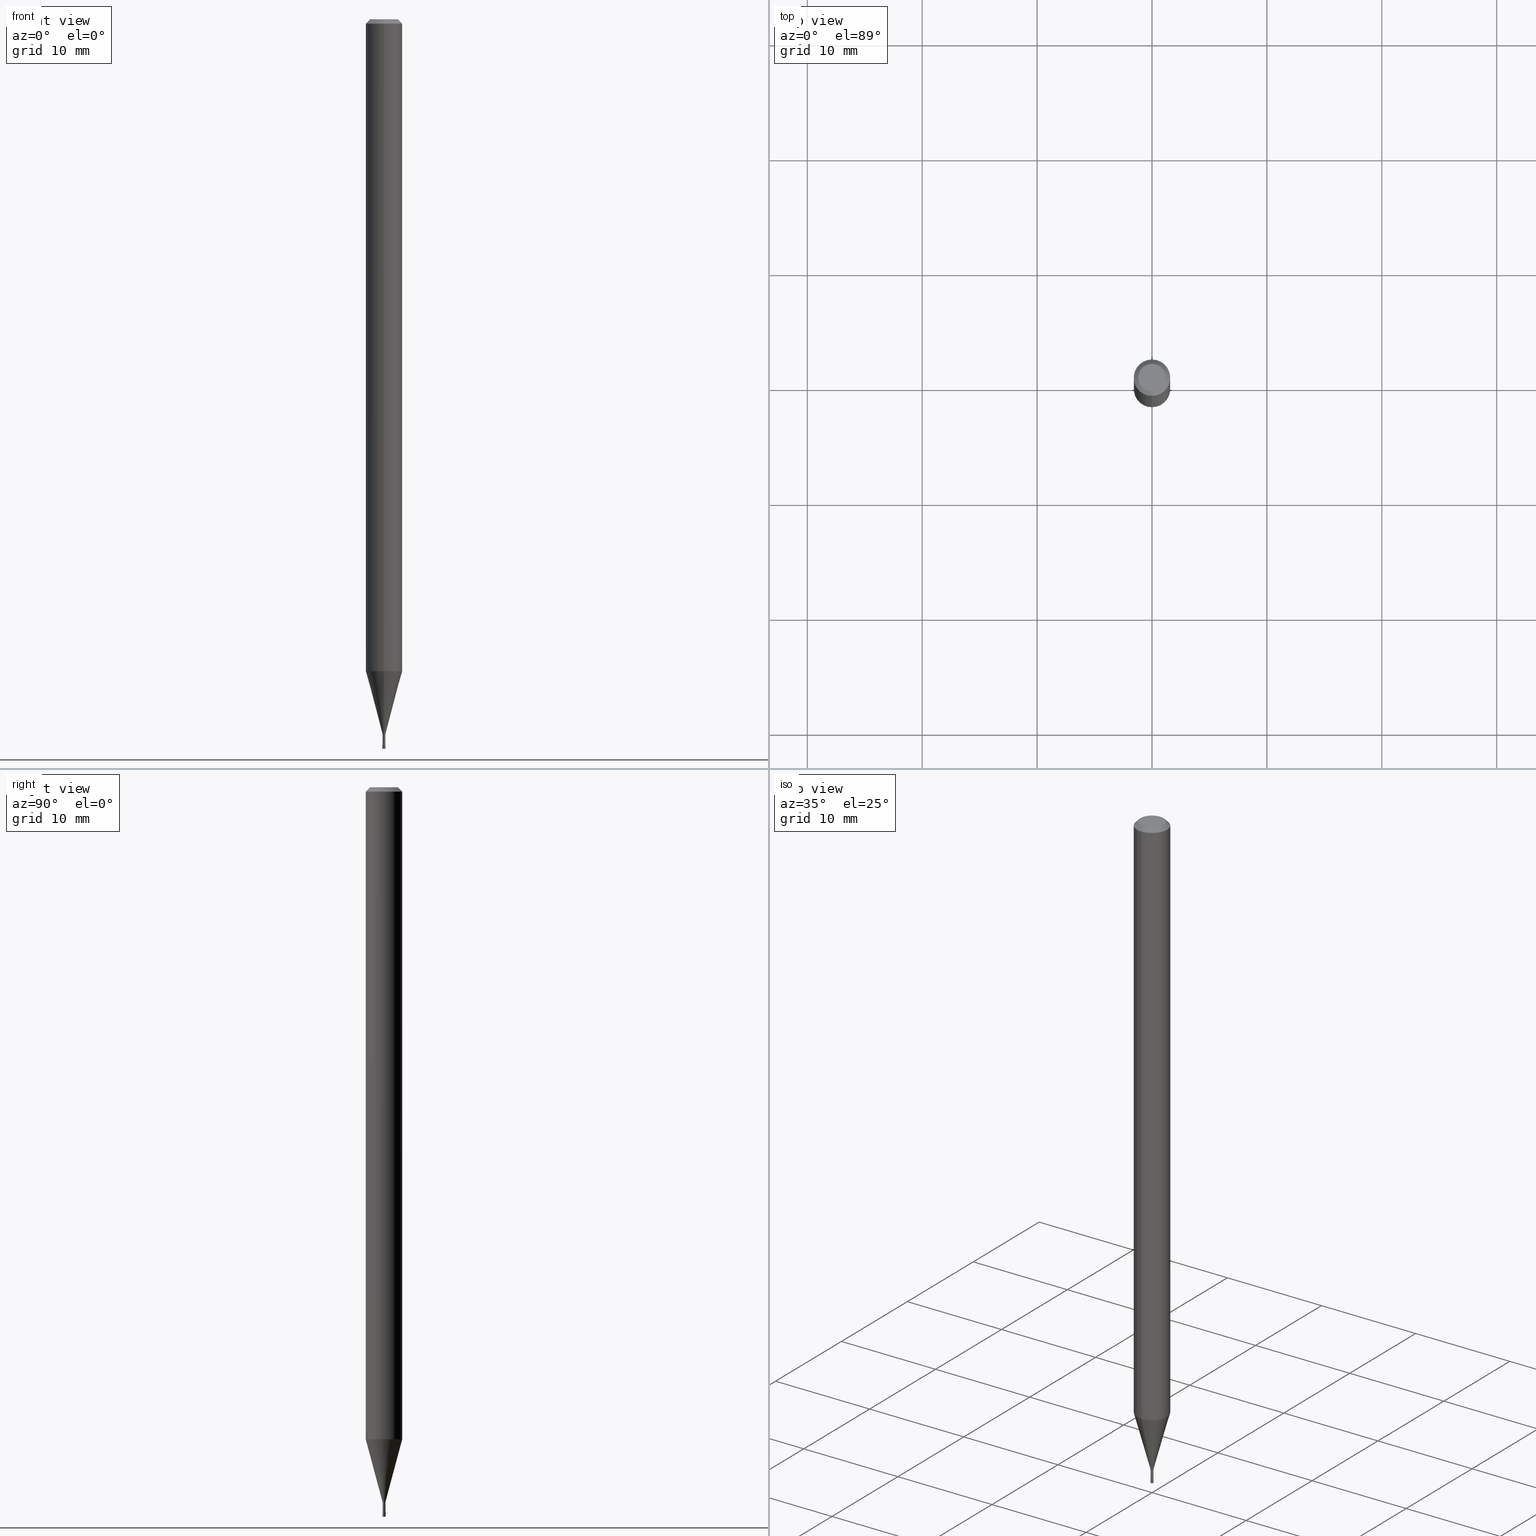
[diagram: canonical four-view strip — front | top / right | iso, engineering-drawing reading convention]
A machine part, canonical four-view strip (front | top / right | iso — engineering-drawing reading convention). The complete STEP part file that produces these views, byte-faithful:
ISO-10303-21;
HEADER;
FILE_DESCRIPTION (( 'STEP AP203' ),
    '1' );
FILE_NAME ('09600.STEP',
    '2024-03-08T23:50:33',
    ( '' ),
    ( '' ),
    'SwSTEP 2.0',
    'SolidWorks 2023',
    '' );
FILE_SCHEMA (( 'CONFIG_CONTROL_DESIGN' ));
ENDSEC;

DATA;
#1 = APPROVAL ( #405, 'UNSPECIFIED' ) ;
#2 = PERSON_AND_ORGANIZATION ( #265, #203 ) ;
#3 = TOROIDAL_SURFACE ( 'NONE', #466, 0.01970000000000000570, 0.01500000000000002547 ) ;
#4 = FACE_OUTER_BOUND ( 'NONE', #63, .T. ) ;
#5 = CARTESIAN_POINT ( 'NONE',  ( 1.399769189448004948E-16, 0.01969999999999134943, -2.482015037688680259 ) ) ;
#6 = DIRECTION ( 'NONE',  ( -2.444331714462359119E-29, 3.493109718909404657E-15, 1.000000000000000000 ) ) ;
#7 = COORDINATED_UNIVERSAL_TIME_OFFSET ( 5, 0, .BEHIND. ) ;
#8 = DIRECTION ( 'NONE',  ( 2.444331714462359119E-29, -3.493109718909404657E-15, -1.000000000000000000 ) ) ;
#9 = EDGE_CURVE ( 'NONE', #297, #431, #255, .T. ) ;
#10 = CARTESIAN_POINT ( 'NONE',  ( 0.004999999999999997502, -8.711245940413648329E-15, -2.484999999999999876 ) ) ;
#11 = CC_DESIGN_APPROVAL ( #114, ( #198 ) ) ;
#12 = CIRCLE ( 'NONE', #482, 0.004700000000000012328 ) ;
#13 = EDGE_LOOP ( 'NONE', ( #341, #112, #497, #382 ) ) ;
#14 = AXIS2_PLACEMENT_3D ( 'NONE', #5, #441, #355 ) ;
#15 = DIRECTION ( 'NONE',  ( -6.982962677686265922E-15, -1.000000000000000000, 3.493109718909405052E-15 ) ) ;
#16 = CARTESIAN_POINT ( 'NONE',  ( -0.004999999999999997502, 3.552713678800499154E-17, -2.459467545127451822E-31 ) ) ;
#17 = DIRECTION ( 'NONE',  ( -2.445468806185136597E-29, 3.491481338843145583E-15, 1.000000000000000000 ) ) ;
#18 = DIRECTION ( 'NONE',  ( -2.445468806185136597E-29, 3.491481338843145583E-15, 1.000000000000000000 ) ) ;
#19 = ORIENTED_EDGE ( 'NONE', *, *, #340, .T. ) ;
#20 = DIRECTION ( 'NONE',  ( 1.000000000000000000, -6.982962677686266711E-15, 4.876176775795936914E-29 ) ) ;
#21 = DIRECTION ( 'NONE',  ( -2.444331714462359119E-29, 3.493109718909404657E-15, 1.000000000000000000 ) ) ;
#22 = EDGE_LOOP ( 'NONE', ( #103, #51 ) ) ;
#23 = AXIS2_PLACEMENT_3D ( 'NONE', #408, #6, #172 ) ;
#24 = APPLICATION_CONTEXT ( 'configuration controlled 3d designs of mechanical parts and assemblies' ) ;
#25 = CARTESIAN_POINT ( 'NONE',  ( 4.440892098501175406E-16, 0.06249999999999995143, -0.01500000000000024751 ) ) ;
#26 = ORIENTED_EDGE ( 'NONE', *, *, #272, .T. ) ;
#27 = EDGE_LOOP ( 'NONE', ( #36, #461 ) ) ;
#28 = ADVANCED_FACE ( 'NONE', ( #310 ), #302, .T. ) ;
#29 = CARTESIAN_POINT ( 'NONE',  ( 0.000000000000000000, 0.000000000000000000, 0.000000000000000000 ) ) ;
#30 = CARTESIAN_POINT ( 'NONE',  ( 2.405581959610007950E-16, 0.005211112605655434174, -2.448092501787273001 ) ) ;
#31 = VECTOR ( 'NONE', #102, 39.37007874015748143 ) ;
#32 = DIRECTION ( 'NONE',  ( -2.438088387897960049E-29, 3.491481338843145188E-15, 1.000000000000000000 ) ) ;
#33 = EDGE_LOOP ( 'NONE', ( #89, #474, #486, #436 ) ) ;
#34 = EDGE_CURVE ( 'NONE', #317, #347, #277, .T. ) ;
#35 = CC_DESIGN_PERSON_AND_ORGANIZATION_ASSIGNMENT ( #45, #87, ( #165 ) ) ;
#36 = ORIENTED_EDGE ( 'NONE', *, *, #430, .F. ) ;
#37 = AXIS2_PLACEMENT_3D ( 'NONE', #266, #204, #365 ) ;
#38 = CIRCLE ( 'NONE', #449, 0.005000000000000001839 ) ;
#39 = AXIS2_PLACEMENT_3D ( 'NONE', #336, #494, #339 ) ;
#40 = APPROVAL_ROLE ( '' ) ;
#41 = VERTEX_POINT ( 'NONE', #25 ) ;
#42 = FACE_OUTER_BOUND ( 'NONE', #22, .T. ) ;
#43 = CC_DESIGN_DATE_AND_TIME_ASSIGNMENT ( #168, #322, ( #121 ) ) ;
#44 = DIRECTION ( 'NONE',  ( -2.444331714462359119E-29, 3.493109718909404657E-15, 1.000000000000000000 ) ) ;
#45 = PERSON_AND_ORGANIZATION ( #265, #203 ) ;
#46 = ORIENTED_EDGE ( 'NONE', *, *, #353, .F. ) ;
#47 = FACE_OUTER_BOUND ( 'NONE', #27, .T. ) ;
#48 = FACE_OUTER_BOUND ( 'NONE', #138, .T. ) ;
#49 = CYLINDRICAL_SURFACE ( 'NONE', #86, 0.004700000000000007991 ) ;
#50 = EDGE_CURVE ( 'NONE', #510, #95, #12, .T. ) ;
#51 = ORIENTED_EDGE ( 'NONE', *, *, #519, .T. ) ;
#52 = DIRECTION ( 'NONE',  ( -2.444331714462359119E-29, 3.493109718909404657E-15, 1.000000000000000000 ) ) ;
#53 = DIRECTION ( 'NONE',  ( -6.982962677686265133E-15, -1.000000000000000000, 3.493109718909404657E-15 ) ) ;
#54 = DIRECTION ( 'NONE',  ( -2.444331714462359119E-29, 3.493109718909404657E-15, 1.000000000000000000 ) ) ;
#55 = AXIS2_PLACEMENT_3D ( 'NONE', #167, #325, #206 ) ;
#56 = ADVANCED_FACE ( 'NONE', ( #48 ), #136, .T. ) ;
#57 = CYLINDRICAL_SURFACE ( 'NONE', #254, 0.004999999999999997502 ) ;
#58 = ORIENTED_EDGE ( 'NONE', *, *, #519, .F. ) ;
#59 = DIRECTION ( 'NONE',  ( -6.982962677686265922E-15, -1.000000000000000000, 0.000000000000000000 ) ) ;
#60 = ORIENTED_EDGE ( 'NONE', *, *, #240, .T. ) ;
#61 = CLOSED_SHELL ( 'NONE', ( #506, #313, #56, #134 ) ) ;
#62 = DIRECTION ( 'NONE',  ( -6.982962677686265922E-15, -1.000000000000000000, 0.000000000000000000 ) ) ;
#63 = EDGE_LOOP ( 'NONE', ( #46, #282, #259, #428 ) ) ;
#64 = CIRCLE ( 'NONE', #39, 0.004999999999999997502 ) ;
#65 = ADVANCED_FACE ( 'NONE', ( #300 ), #333, .T. ) ;
#66 = ORIENTED_EDGE ( 'NONE', *, *, #185, .T. ) ;
#67 = MECHANICAL_CONTEXT ( 'NONE', #24, 'mechanical' ) ;
#68 = CARTESIAN_POINT ( 'NONE',  ( -3.281992458512550585E-17, -0.004700000000000007991, 1.641761567887423080E-17 ) ) ;
#69 = EDGE_LOOP ( 'NONE', ( #468, #308, #363, #465 ) ) ;
#70 = LOCAL_TIME ( 18, 50, 33.00000000000000000, #7 ) ;
#71 = CARTESIAN_POINT ( 'NONE',  ( 6.076989983370064174E-29, -8.676331127025216680E-15, -2.484999999999999876 ) ) ;
#72 = DIRECTION ( 'NONE',  ( -6.982962677686265922E-15, -1.000000000000000000, 0.000000000000000000 ) ) ;
#73 = VECTOR ( 'NONE', #196, 39.37007874015748143 ) ;
#74 = EDGE_CURVE ( 'NONE', #297, #378, #403, .T. ) ;
#75 = PERSON_AND_ORGANIZATION ( #265, #203 ) ;
#76 = ADVANCED_FACE ( 'NONE', ( #47 ), #263, .F. ) ;
#77 = VECTOR ( 'NONE', #518, 39.37007874015748143 ) ;
#78 = PERSON_AND_ORGANIZATION ( #265, #203 ) ;
#79 = DIRECTION ( 'NONE',  ( -2.444331714462359119E-29, 3.493109718909404657E-15, 1.000000000000000000 ) ) ;
#80 = DIRECTION ( 'NONE',  ( 6.982962677686265922E-15, 1.000000000000000000, -3.493109718909404263E-15 ) ) ;
#81 = SHAPE_DEFINITION_REPRESENTATION ( #239, #469 ) ;
#82 = CARTESIAN_POINT ( 'NONE',  ( -4.364351673553916201E-16, -0.06250000000000000000, 2.183193574318377911E-16 ) ) ;
#83 = PERSON_AND_ORGANIZATION ( #265, #203 ) ;
#84 = CARTESIAN_POINT ( 'NONE',  ( 0.000000000000000000, 0.000000000000000000, 0.000000000000000000 ) ) ;
#85 = DIRECTION ( 'NONE',  ( 1.839019923739597949E-15, 0.2588190451025246253, 0.9659258262890670910 ) ) ;
#86 = AXIS2_PLACEMENT_3D ( 'NONE', #219, #210, #451 ) ;
#87 = PERSON_AND_ORGANIZATION_ROLE ( 'design_owner' ) ;
#88 = AXIS2_PLACEMENT_3D ( 'NONE', #126, #208, #293 ) ;
#89 = ORIENTED_EDGE ( 'NONE', *, *, #240, .F. ) ;
#90 = FACE_OUTER_BOUND ( 'NONE', #507, .T. ) ;
#91 = LINE ( 'NONE', #16, #243 ) ;
#92 = DIRECTION ( 'NONE',  ( 2.438088387897960049E-29, -3.491481338843145188E-15, -1.000000000000000000 ) ) ;
#93 = DIRECTION ( 'NONE',  ( -6.982962677686265922E-15, -1.000000000000000000, 0.000000000000000000 ) ) ;
#94 = ADVANCED_FACE ( 'NONE', ( #4 ), #393, .F. ) ;
#95 = VERTEX_POINT ( 'NONE', #170 ) ;
#96 = DIRECTION ( 'NONE',  ( -2.444331714462359119E-29, 3.493109718909404657E-15, 1.000000000000000000 ) ) ;
#97 = DIRECTION ( 'NONE',  ( -6.982962677686266711E-15, -1.000000000000000000, 3.493109718909405052E-15 ) ) ;
#98 =( LENGTH_UNIT ( ) NAMED_UNIT ( * ) SI_UNIT ( $, .METRE. ) );
#99 = CIRCLE ( 'NONE', #14, 0.01500000000000000638 ) ;
#100 = ADVANCED_FACE ( 'NONE', ( #216 ), #295, .F. ) ;
#101 = DIRECTION ( 'NONE',  ( -2.445468806185136597E-29, 3.491481338843145583E-15, 1.000000000000000000 ) ) ;
#102 = DIRECTION ( 'NONE',  ( -4.851104656540964275E-15, -0.7071067811865500152, -0.7071067811865450192 ) ) ;
#103 = ORIENTED_EDGE ( 'NONE', *, *, #284, .T. ) ;
#104 = FACE_OUTER_BOUND ( 'NONE', #406, .T. ) ;
#105 = DIRECTION ( 'NONE',  ( -6.982962677686265922E-15, -1.000000000000000000, 4.370956789862821150E-15 ) ) ;
#106 = ORIENTED_EDGE ( 'NONE', *, *, #50, .F. ) ;
#107 = AXIS2_PLACEMENT_3D ( 'NONE', #444, #96, #249 ) ;
#108 = LOCAL_TIME ( 18, 50, 33.00000000000000000, #163 ) ;
#109 = DIRECTION ( 'NONE',  ( -6.982962677686265922E-15, -1.000000000000000000, 0.000000000000000000 ) ) ;
#110 = ORIENTED_EDGE ( 'NONE', *, *, #74, .T. ) ;
#111 = AXIS2_PLACEMENT_3D ( 'NONE', #475, #158, #244 ) ;
#112 = ORIENTED_EDGE ( 'NONE', *, *, #472, .T. ) ;
#113 = ORIENTED_EDGE ( 'NONE', *, *, #472, .F. ) ;
#114 = APPROVAL ( #481, 'UNSPECIFIED' ) ;
#115 = CLOSED_SHELL ( 'NONE', ( #125, #118, #94, #367, #28, #207, #394, #65, #409, #194, #76, #100, #418, #162 ) ) ;
#116 = CONICAL_SURFACE ( 'NONE', #384, 0.06250000000000000000, 0.7853981633974483900 ) ;
#117 = CARTESIAN_POINT ( 'NONE',  ( 3.339550858072475935E-17, 0.004700000000000007991, -1.641761567887423080E-17 ) ) ;
#118 = ADVANCED_FACE ( 'NONE', ( #447 ), #294, .T. ) ;
#119 = DIRECTION ( 'NONE',  ( -6.982962677686265922E-15, -1.000000000000000000, 0.000000000000000000 ) ) ;
#120 = PERSON_AND_ORGANIZATION_ROLE ( 'creator' ) ;
#121 = SECURITY_CLASSIFICATION ( '', '', #209 ) ;
#122 = CARTESIAN_POINT ( 'NONE',  ( 3.316907271900976096E-16, 0.04749999999999999362, -1.803409930855575528E-16 ) ) ;
#123 = DIRECTION ( 'NONE',  ( 1.000000000000000000, -6.982962677686266711E-15, 4.876176775795936914E-29 ) ) ;
#124 = CARTESIAN_POINT ( 'NONE',  ( 6.113672015462842613E-29, -8.728703347107864943E-15, -2.500000000000000000 ) ) ;
#125 = ADVANCED_FACE ( 'NONE', ( #368 ), #184, .F. ) ;
#126 = CARTESIAN_POINT ( 'NONE',  ( 6.066709664809331474E-29, -8.670177699308193072E-15, -2.482015037688680259 ) ) ;
#127 = DIRECTION ( 'NONE',  ( 1.000000000000000000, -6.982962677686336130E-15, 0.000000000000000000 ) ) ;
#128 = APPROVAL_DATE_TIME ( #520, #114 ) ;
#129 = AXIS2_PLACEMENT_3D ( 'NONE', #84, #374, #15 ) ;
#130 = CARTESIAN_POINT ( 'NONE',  ( -0.004999999999999997502, -8.666990100278535771E-15, -2.500000000000000000 ) ) ;
#131 = CONICAL_SURFACE ( 'NONE', #278, 0.06250000000000000000, 0.7853981633974483900 ) ;
#132 = DIRECTION ( 'NONE',  ( 1.000000000000000000, -6.982962677686336130E-15, 0.000000000000000000 ) ) ;
#133 = CARTESIAN_POINT ( 'NONE',  ( 3.840629472727447874E-16, 0.04749999999999999362, -1.947592745229183872E-16 ) ) ;
#134 = ADVANCED_FACE ( 'NONE', ( #90 ), #399, .T. ) ;
#135 = ORIENTED_EDGE ( 'NONE', *, *, #230, .T. ) ;
#136 = CYLINDRICAL_SURFACE ( 'NONE', #153, 0.004999999999999997502 ) ;
#137 = CARTESIAN_POINT ( 'NONE',  ( 0.000000000000000000, 0.000000000000000000, 0.000000000000000000 ) ) ;
#138 = EDGE_LOOP ( 'NONE', ( #292, #214, #350, #234 ) ) ;
#139 = LINE ( 'NONE', #183, #175 ) ;
#140 = CIRCLE ( 'NONE', #491, 0.004700000000000003654 ) ;
#141 = ORIENTED_EDGE ( 'NONE', *, *, #233, .T. ) ;
#142 = MANIFOLD_SOLID_BREP ( 'Body-Move/Copy2[1]', #61 ) ;
#143 = DESIGN_CONTEXT ( 'detailed design', #499, 'design' ) ;
#144 = DIRECTION ( 'NONE',  ( -2.444331714462359119E-29, 3.493109718909404657E-15, 1.000000000000000000 ) ) ;
#145 = EDGE_LOOP ( 'NONE', ( #190, #434 ) ) ;
#146 = EDGE_CURVE ( 'NONE', #150, #501, #299, .T. ) ;
#147 = EDGE_CURVE ( 'NONE', #95, #317, #99, .T. ) ;
#148 = CARTESIAN_POINT ( 'NONE',  ( 6.074164310438962886E-29, -8.680377651489870003E-15, -2.484999999999999876 ) ) ;
#149 = CARTESIAN_POINT ( 'NONE',  ( -4.364351673553370901E-16, -0.06250000000000781319, -2.234287463322519152 ) ) ;
#150 = VERTEX_POINT ( 'NONE', #429 ) ;
#151 =( GEOMETRIC_REPRESENTATION_CONTEXT ( 3 ) GLOBAL_UNCERTAINTY_ASSIGNED_CONTEXT ( ( #351 ) ) GLOBAL_UNIT_ASSIGNED_CONTEXT ( ( #379, #352, #275 ) ) REPRESENTATION_CONTEXT ( 'NONE', 'WORKASPACE' ) );
#152 = VERTEX_POINT ( 'NONE', #30 ) ;
#153 = AXIS2_PLACEMENT_3D ( 'NONE', #337, #17, #123 ) ;
#154 = EDGE_CURVE ( 'NONE', #443, #41, #232, .T. ) ;
#155 = DIRECTION ( 'NONE',  ( -2.444331714462359119E-29, 3.493109718909404657E-15, 1.000000000000000000 ) ) ;
#156 = VERTEX_POINT ( 'NONE', #161 ) ;
#157 = DIRECTION ( 'NONE',  ( -6.982962677686265133E-15, -1.000000000000000000, 3.493109718909404657E-15 ) ) ;
#158 = DIRECTION ( 'NONE',  ( -2.444331714462359119E-29, 3.493109718909404657E-15, 1.000000000000000000 ) ) ;
#159 = AXIS2_PLACEMENT_3D ( 'NONE', #29, #316, #471 ) ;
#160 = CONICAL_SURFACE ( 'NONE', #314, 0.005211112605663986361, 0.2617993877991499629 ) ;
#161 = CARTESIAN_POINT ( 'NONE',  ( -3.773273898774340269E-16, -0.04749999999999999362, 1.370861487734750493E-16 ) ) ;
#162 = ADVANCED_FACE ( 'NONE', ( #235 ), #3, .F. ) ;
#163 = COORDINATED_UNIVERSAL_TIME_OFFSET ( 5, 0, .BEHIND. ) ;
#164 = CARTESIAN_POINT ( 'NONE',  ( 5.993439736059896180E-29, -8.565016960610659834E-15, -2.451974787463810923 ) ) ;
#165 = PRODUCT ( '09600', '09600', '', ( #67 ) ) ;
#166 = CIRCLE ( 'NONE', #358, 0.04749999999999999362 ) ;
#167 = CARTESIAN_POINT ( 'NONE',  ( 5.461339705824889483E-29, -7.804611252969332594E-15, -2.234287463322519596 ) ) ;
#168 = DATE_AND_TIME ( #439, #70 ) ;
#169 = ORIENTED_EDGE ( 'NONE', *, *, #284, .F. ) ;
#170 = CARTESIAN_POINT ( 'NONE',  ( 3.446132268442561466E-17, 0.004699999999991343047, -2.482015037688680259 ) ) ;
#171 = CALENDAR_DATE ( 2024, 8, 3 ) ;
#172 = DIRECTION ( 'NONE',  ( -6.982962677686265922E-15, -1.000000000000000000, 3.483106191921935554E-15 ) ) ;
#173 = PERSON_AND_ORGANIZATION_ROLE ( 'creator' ) ;
#174 = CARTESIAN_POINT ( 'NONE',  ( 4.440892098501170476E-16, 0.06249999999999218681, -2.234287463322519596 ) ) ;
#175 = VECTOR ( 'NONE', #458, 39.37007874015748143 ) ;
#176 = AXIS2_PLACEMENT_3D ( 'NONE', #148, #305, #462 ) ;
#177 = AXIS2_PLACEMENT_3D ( 'NONE', #476, #422, #59 ) ;
#178 = CC_DESIGN_PERSON_AND_ORGANIZATION_ASSIGNMENT ( #258, #173, ( #334 ) ) ;
#179 = CARTESIAN_POINT ( 'NONE',  ( -1.375643647503589158E-16, -0.01970000000000868973, -2.482015037688680259 ) ) ;
#180 = ORIENTED_EDGE ( 'NONE', *, *, #354, .T. ) ;
#181 = DIRECTION ( 'NONE',  ( -6.982962677686265922E-15, -1.000000000000000000, 3.483106191921935554E-15 ) ) ;
#182 = ORIENTED_EDGE ( 'NONE', *, *, #430, .T. ) ;
#183 = CARTESIAN_POINT ( 'NONE',  ( -3.638900483451220324E-17, -0.005211112605672538547, -2.448092501787273001 ) ) ;
#184 = TOROIDAL_SURFACE ( 'NONE', #111, 0.01970000000000000570, 0.01500000000000002547 ) ;
#185 = EDGE_CURVE ( 'NONE', #253, #500, #256, .T. ) ;
#186 = ORIENTED_EDGE ( 'NONE', *, *, #154, .T. ) ;
#187 = CARTESIAN_POINT ( 'NONE',  ( 5.461339705824889483E-29, -7.804611252969332594E-15, -2.234287463322519596 ) ) ;
#188 = CC_DESIGN_PERSON_AND_ORGANIZATION_ASSIGNMENT ( #2, #370, ( #121 ) ) ;
#189 = DIRECTION ( 'NONE',  ( 2.444331714462359119E-29, -3.493109718909404657E-15, -1.000000000000000000 ) ) ;
#190 = ORIENTED_EDGE ( 'NONE', *, *, #241, .T. ) ;
#191 = DIMENSIONAL_EXPONENTS ( 1.000000000000000000, 0.000000000000000000, 0.000000000000000000, 0.000000000000000000, 0.000000000000000000, 0.000000000000000000, 0.000000000000000000 ) ;
#192 = EDGE_LOOP ( 'NONE', ( #453, #169, #186, #281 ) ) ;
#193 = EDGE_LOOP ( 'NONE', ( #141, #348, #271, #267 ) ) ;
#194 = ADVANCED_FACE ( 'NONE', ( #42 ), #321, .F. ) ;
#195 = CARTESIAN_POINT ( 'NONE',  ( 3.491481338849245302E-17, 0.004999999999991268373, -2.500000000000000000 ) ) ;
#196 = DIRECTION ( 'NONE',  ( -2.445468806185136877E-29, 3.491481338843145188E-15, 1.000000000000000000 ) ) ;
#197 = AXIS2_PLACEMENT_3D ( 'NONE', #71, #32, #388 ) ;
#198 = PRODUCT_DEFINITION_FORMATION_WITH_SPECIFIED_SOURCE ( 'ANY', '', #165, .NOT_KNOWN. ) ;
#199 = AXIS2_PLACEMENT_3D ( 'NONE', #187, #21, #105 ) ;
#200 = VECTOR ( 'NONE', #512, 39.37007874015748143 ) ;
#201 = COORDINATED_UNIVERSAL_TIME_OFFSET ( 5, 0, .BEHIND. ) ;
#202 = CARTESIAN_POINT ( 'NONE',  ( 5.983950142056131957E-29, -8.551455710782364148E-15, -2.448092501787273001 ) ) ;
#203 = ORGANIZATION ( 'UNSPECIFIED', 'UNSPECIFIED', '' ) ;
#204 = DIRECTION ( 'NONE',  ( -2.444331714462359119E-29, 3.493109718909404263E-15, 1.000000000000000000 ) ) ;
#205 = AXIS2_PLACEMENT_3D ( 'NONE', #502, #144, #62 ) ;
#206 = DIRECTION ( 'NONE',  ( -6.982962677686265922E-15, -1.000000000000000000, 4.370956789862821150E-15 ) ) ;
#207 = ADVANCED_FACE ( 'NONE', ( #401 ), #395, .T. ) ;
#208 = DIRECTION ( 'NONE',  ( -2.444331714462359119E-29, 3.493109718909404657E-15, 1.000000000000000000 ) ) ;
#209 = SECURITY_CLASSIFICATION_LEVEL ( 'unclassified' ) ;
#210 = DIRECTION ( 'NONE',  ( -2.444331714462359119E-29, 3.493109718909404657E-15, 1.000000000000000000 ) ) ;
#211 = ORIENTED_EDGE ( 'NONE', *, *, #516, .F. ) ;
#212 = DIRECTION ( 'NONE',  ( -1.000000000000000000, 6.982962677686265922E-15, -4.883557194083112340E-29 ) ) ;
#213 = DIRECTION ( 'NONE',  ( -1.000000000000000000, 6.982962677686265922E-15, -4.876176775795935793E-29 ) ) ;
#214 = ORIENTED_EDGE ( 'NONE', *, *, #375, .T. ) ;
#215 = CC_DESIGN_DATE_AND_TIME_ASSIGNMENT ( #484, #252, ( #334 ) ) ;
#216 = FACE_OUTER_BOUND ( 'NONE', #421, .T. ) ;
#217 = EDGE_CURVE ( 'NONE', #152, #253, #245, .T. ) ;
#218 = LOCAL_TIME ( 18, 50, 33.00000000000000000, #285 ) ;
#219 = CARTESIAN_POINT ( 'NONE',  ( 0.000000000000000000, 0.000000000000000000, 0.000000000000000000 ) ) ;
#220 = CIRCLE ( 'NONE', #274, 0.004999999999999997502 ) ;
#221 = LENGTH_MEASURE_WITH_UNIT ( LENGTH_MEASURE( 0.02539999999999999897 ), #98 );
#222 = ORIENTED_EDGE ( 'NONE', *, *, #485, .T. ) ;
#223 = LINE ( 'NONE', #264, #31 ) ;
#224 = ORIENTED_EDGE ( 'NONE', *, *, #233, .F. ) ;
#225 = CC_DESIGN_SECURITY_CLASSIFICATION ( #121, ( #198 ) ) ;
#226 = CIRCLE ( 'NONE', #424, 0.004999999999999997502 ) ;
#227 = EDGE_LOOP ( 'NONE', ( #113, #503, #66, #19 ) ) ;
#228 = FACE_OUTER_BOUND ( 'NONE', #273, .T. ) ;
#229 = ORIENTED_EDGE ( 'NONE', *, *, #320, .T. ) ;
#230 = EDGE_CURVE ( 'NONE', #431, #297, #440, .T. ) ;
#231 = ORIENTED_EDGE ( 'NONE', *, *, #262, .F. ) ;
#232 = LINE ( 'NONE', #318, #200 ) ;
#233 = EDGE_CURVE ( 'NONE', #150, #400, #220, .T. ) ;
#234 = ORIENTED_EDGE ( 'NONE', *, *, #415, .F. ) ;
#235 = FACE_OUTER_BOUND ( 'NONE', #227, .T. ) ;
#236 = LOCAL_TIME ( 18, 50, 33.00000000000000000, #410 ) ;
#237 = AXIS2_PLACEMENT_3D ( 'NONE', #122, #289, #80 ) ;
#238 = DIRECTION ( 'NONE',  ( -1.000000000000000000, 6.982962677686265922E-15, -4.883557194083112340E-29 ) ) ;
#239 = PRODUCT_DEFINITION_SHAPE ( 'NONE', 'NONE',  #334 ) ;
#240 = EDGE_CURVE ( 'NONE', #152, #431, #369, .T. ) ;
#241 = EDGE_CURVE ( 'NONE', #501, #391, #226, .T. ) ;
#242 = APPROVAL_STATUS ( 'not_yet_approved' ) ;
#243 = VECTOR ( 'NONE', #452, 39.37007874015748143 ) ;
#244 = DIRECTION ( 'NONE',  ( -6.982962677686265133E-15, -1.000000000000000000, 3.493109718909404657E-15 ) ) ;
#245 = CIRCLE ( 'NONE', #376, 0.005211112605663986361 ) ;
#246 = CALENDAR_DATE ( 2024, 8, 3 ) ;
#247 = CARTESIAN_POINT ( 'NONE',  ( 5.983950142056131957E-29, -8.551455710782364148E-15, -2.448092501787273001 ) ) ;
#248 = APPLICATION_PROTOCOL_DEFINITION ( 'international standard', 'config_control_design', 1994, #499 ) ;
#249 = DIRECTION ( 'NONE',  ( -6.982962677686265922E-15, -1.000000000000000000, 3.493109718909404657E-15 ) ) ;
#250 = CC_DESIGN_PERSON_AND_ORGANIZATION_ASSIGNMENT ( #329, #442, ( #198 ) ) ;
#251 = DIRECTION ( 'NONE',  ( 1.000000000000000000, -6.982962677686336130E-15, 0.000000000000000000 ) ) ;
#252 = DATE_TIME_ROLE ( 'creation_date' ) ;
#253 = VERTEX_POINT ( 'NONE', #488 ) ;
#254 = AXIS2_PLACEMENT_3D ( 'NONE', #137, #18, #20 ) ;
#255 = CIRCLE ( 'NONE', #199, 0.06250000000000000000 ) ;
#256 = CIRCLE ( 'NONE', #450, 0.01500000000000002373 ) ;
#257 = CARTESIAN_POINT ( 'NONE',  ( 6.076989983370064174E-29, -8.676331127025216680E-15, -2.484999999999999876 ) ) ;
#258 = PERSON_AND_ORGANIZATION ( #265, #203 ) ;
#259 = ORIENTED_EDGE ( 'NONE', *, *, #34, .T. ) ;
#260 = DIRECTION ( 'NONE',  ( -2.444331714462359119E-29, 3.493109718909404263E-15, 1.000000000000000000 ) ) ;
#261 = CARTESIAN_POINT ( 'NONE',  ( 3.666497571693545913E-31, -5.239664578364117759E-17, -0.01500000000000003067 ) ) ;
#262 = EDGE_CURVE ( 'NONE', #41, #378, #514, .T. ) ;
#263 = PLANE ( 'NONE',  #37 ) ;
#264 = CARTESIAN_POINT ( 'NONE',  ( -4.287811248607203282E-16, -0.06250000000000005551, -0.01499999999999981209 ) ) ;
#265 = PERSON ( 'UNSPECIFIED', 'UNSPECIFIED', 'UNSPECIFIED', ('UNSPECIFIED'), ('UNSPECIFIED'), ('UNSPECIFIED') ) ;
#266 = CARTESIAN_POINT ( 'NONE',  ( 3.491481338849208940E-17, 0.004999999999991321283, -2.484999999999999876 ) ) ;
#267 = ORIENTED_EDGE ( 'NONE', *, *, #146, .F. ) ;
#268 = CARTESIAN_POINT ( 'NONE',  ( 7.048612517077012088E-46, -1.007292780376324929E-31, -2.883656287472169979E-17 ) ) ;
#269 = ORIENTED_EDGE ( 'NONE', *, *, #9, .F. ) ;
#270 = CARTESIAN_POINT ( 'NONE',  ( 5.993439736059896180E-29, -8.565016960610659834E-15, -2.451974787463810923 ) ) ;
#271 = ORIENTED_EDGE ( 'NONE', *, *, #241, .F. ) ;
#272 = EDGE_CURVE ( 'NONE', #95, #344, #478, .T. ) ;
#273 = EDGE_LOOP ( 'NONE', ( #58, #327, #380, #459 ) ) ;
#274 = AXIS2_PLACEMENT_3D ( 'NONE', #124, #445, #251 ) ;
#275 =( NAMED_UNIT ( * ) SI_UNIT ( $, .STERADIAN. ) SOLID_ANGLE_UNIT ( ) );
#276 = CARTESIAN_POINT ( 'NONE',  ( 5.993247169954418774E-29, -8.565292726233885242E-15, -2.451974787463810923 ) ) ;
#277 = CIRCLE ( 'NONE', #176, 0.005000000000000001839 ) ;
#278 = AXIS2_PLACEMENT_3D ( 'NONE', #261, #8, #460 ) ;
#279 = EDGE_LOOP ( 'NONE', ( #389, #26, #425, #387 ) ) ;
#280 = FACE_OUTER_BOUND ( 'NONE', #145, .T. ) ;
#281 = ORIENTED_EDGE ( 'NONE', *, *, #262, .T. ) ;
#282 = ORIENTED_EDGE ( 'NONE', *, *, #147, .T. ) ;
#283 = LOCAL_TIME ( 18, 50, 33.00000000000000000, #201 ) ;
#284 = EDGE_CURVE ( 'NONE', #443, #156, #166, .T. ) ;
#285 = COORDINATED_UNIVERSAL_TIME_OFFSET ( 5, 0, .BEHIND. ) ;
#286 = EDGE_CURVE ( 'NONE', #431, #41, #511, .T. ) ;
#287 = AXIS2_PLACEMENT_3D ( 'NONE', #414, #52, #181 ) ;
#288 = VECTOR ( 'NONE', #390, 39.37007874015748143 ) ;
#289 = DIRECTION ( 'NONE',  ( 2.444331714462359119E-29, -3.493109718909404263E-15, -1.000000000000000000 ) ) ;
#290 = EDGE_CURVE ( 'NONE', #344, #500, #364, .T. ) ;
#291 = DIRECTION ( 'NONE',  ( -6.982962677686266711E-15, -1.000000000000000000, 0.000000000000000000 ) ) ;
#292 = ORIENTED_EDGE ( 'NONE', *, *, #477, .F. ) ;
#293 = DIRECTION ( 'NONE',  ( -6.982962677686265133E-15, -1.000000000000000000, 3.493109718909404657E-15 ) ) ;
#294 = CYLINDRICAL_SURFACE ( 'NONE', #129, 0.004700000000000007991 ) ;
#295 = TOROIDAL_SURFACE ( 'NONE', #88, 0.01970000000000001958, 0.01500000000000000638 ) ;
#296 = DIRECTION ( 'NONE',  ( 7.105427357601001859E-15, 1.000000000000000000, 0.000000000000000000 ) ) ;
#297 = VERTEX_POINT ( 'NONE', #149 ) ;
#298 = CARTESIAN_POINT ( 'NONE',  ( 1.399769189447996812E-16, 0.01969999999999143964, -2.451974787463810923 ) ) ;
#299 = LINE ( 'NONE', #366, #73 ) ;
#300 = FACE_OUTER_BOUND ( 'NONE', #315, .T. ) ;
#301 = DIRECTION ( 'NONE',  ( -6.982962677686266711E-15, -1.000000000000000000, 3.493109718909405052E-15 ) ) ;
#302 = CYLINDRICAL_SURFACE ( 'NONE', #335, 0.06250000000000000000 ) ;
#303 = AXIS2_PLACEMENT_3D ( 'NONE', #247, #397, #119 ) ;
#304 = CARTESIAN_POINT ( 'NONE',  ( 5.983950142056131957E-29, -8.551455710782364148E-15, -2.448092501787273001 ) ) ;
#305 = DIRECTION ( 'NONE',  ( -2.444331714462359119E-29, 3.493109718909404657E-15, 1.000000000000000000 ) ) ;
#306 = CC_DESIGN_PERSON_AND_ORGANIZATION_ASSIGNMENT ( #75, #120, ( #198 ) ) ;
#307 = ORIENTED_EDGE ( 'NONE', *, *, #353, .T. ) ;
#308 = ORIENTED_EDGE ( 'NONE', *, *, #286, .T. ) ;
#309 = CARTESIAN_POINT ( 'NONE',  ( 6.113672015462842613E-29, -8.728703347107864943E-15, -2.500000000000000000 ) ) ;
#310 = FACE_OUTER_BOUND ( 'NONE', #69, .T. ) ;
#311 = PLANE ( 'NONE',  #197 ) ;
#312 = ORIENTED_EDGE ( 'NONE', *, *, #286, .F. ) ;
#313 = ADVANCED_FACE ( 'NONE', ( #280 ), #311, .T. ) ;
#314 = AXIS2_PLACEMENT_3D ( 'NONE', #304, #54, #93 ) ;
#315 = EDGE_LOOP ( 'NONE', ( #312, #135, #110, #231 ) ) ;
#316 = DIRECTION ( 'NONE',  ( 0.000000000000000000, 0.000000000000000000, 1.000000000000000000 ) ) ;
#317 = VERTEX_POINT ( 'NONE', #346 ) ;
#318 = CARTESIAN_POINT ( 'NONE',  ( 4.364351673553919652E-16, 0.06249999999999995143, -0.01500000000000024751 ) ) ;
#319 = CC_DESIGN_APPROVAL ( #396, ( #121 ) ) ;
#320 = EDGE_CURVE ( 'NONE', #510, #500, #464, .T. ) ;
#321 = PLANE ( 'NONE',  #237 ) ;
#322 = DATE_TIME_ROLE ( 'classification_date' ) ;
#323 = DIRECTION ( 'NONE',  ( -2.444331714462359119E-29, 3.493109718909404657E-15, 1.000000000000000000 ) ) ;
#324 = AXIS2_PLACEMENT_3D ( 'NONE', #492, #416, #53 ) ;
#325 = DIRECTION ( 'NONE',  ( -2.444331714462359119E-29, 3.493109718909404657E-15, 1.000000000000000000 ) ) ;
#326 = DATE_AND_TIME ( #246, #283 ) ;
#327 = ORIENTED_EDGE ( 'NONE', *, *, #470, .T. ) ;
#328 = DIRECTION ( 'NONE',  ( -2.445468806185136597E-29, 3.491481338843145583E-15, 1.000000000000000000 ) ) ;
#329 = PERSON_AND_ORGANIZATION ( #265, #203 ) ;
#330 = DIRECTION ( 'NONE',  ( 1.000000000000000000, -7.105427357601001070E-15, 4.926335450446441508E-29 ) ) ;
#331 = AXIS2_PLACEMENT_3D ( 'NONE', #195, #92, #213 ) ;
#332 = AXIS2_PLACEMENT_3D ( 'NONE', #179, #212, #372 ) ;
#333 = CYLINDRICAL_SURFACE ( 'NONE', #107, 0.06250000000000000000 ) ;
#334 = PRODUCT_DEFINITION ( 'UNKNOWN', '', #198, #143 ) ;
#335 = AXIS2_PLACEMENT_3D ( 'NONE', #456, #385, #343 ) ;
#336 = CARTESIAN_POINT ( 'NONE',  ( 6.076989983370064174E-29, -8.676331127025216680E-15, -2.484999999999999876 ) ) ;
#337 = CARTESIAN_POINT ( 'NONE',  ( 0.000000000000000000, 0.000000000000000000, 0.000000000000000000 ) ) ;
#338 = CARTESIAN_POINT ( 'NONE',  ( 7.048612517077012088E-46, -1.007292780376324929E-31, -2.883656287472169979E-17 ) ) ;
#339 = DIRECTION ( 'NONE',  ( 1.000000000000000000, -6.982962677686336130E-15, 0.000000000000000000 ) ) ;
#340 = EDGE_CURVE ( 'NONE', #500, #344, #140, .T. ) ;
#341 = ORIENTED_EDGE ( 'NONE', *, *, #217, .F. ) ;
#342 = CIRCLE ( 'NONE', #407, 0.004999999999999997502 ) ;
#343 = DIRECTION ( 'NONE',  ( -6.982962677686265922E-15, -1.000000000000000000, 3.493109718909404657E-15 ) ) ;
#344 = VERTEX_POINT ( 'NONE', #473 ) ;
#345 = ORIENTED_EDGE ( 'NONE', *, *, #272, .F. ) ;
#346 = CARTESIAN_POINT ( 'NONE',  ( 3.552713678806574616E-17, 0.004999999999991322150, -2.484999999999999876 ) ) ;
#347 = VERTEX_POINT ( 'NONE', #433 ) ;
#348 = ORIENTED_EDGE ( 'NONE', *, *, #477, .T. ) ;
#349 = CIRCLE ( 'NONE', #287, 0.06250000000000000000 ) ;
#350 = ORIENTED_EDGE ( 'NONE', *, *, #146, .T. ) ;
#351 = UNCERTAINTY_MEASURE_WITH_UNIT (LENGTH_MEASURE( 1.000000000000000082E-05 ), #379, 'distance_accuracy_value', 'NONE');
#352 =( NAMED_UNIT ( * ) PLANE_ANGLE_UNIT ( ) SI_UNIT ( $, .RADIAN. ) );
#353 = EDGE_CURVE ( 'NONE', #95, #510, #435, .T. ) ;
#354 = EDGE_CURVE ( 'NONE', #253, #152, #356, .T. ) ;
#355 = DIRECTION ( 'NONE',  ( 7.105427357601000281E-15, 1.000000000000000000, 0.000000000000000000 ) ) ;
#356 = CIRCLE ( 'NONE', #205, 0.005211112605663986361 ) ;
#357 = CIRCLE ( 'NONE', #455, 0.04749999999999999362 ) ;
#358 = AXIS2_PLACEMENT_3D ( 'NONE', #338, #454, #97 ) ;
#359 = CARTESIAN_POINT ( 'NONE',  ( 4.440892098500625669E-16, 0.06250000000000000000, -2.183193574318377911E-16 ) ) ;
#360 = DIRECTION ( 'NONE',  ( -6.982962677686265922E-15, -1.000000000000000000, 0.000000000000000000 ) ) ;
#361 = CALENDAR_DATE ( 2024, 8, 3 ) ;
#362 = CC_DESIGN_APPROVAL ( #1, ( #334 ) ) ;
#363 = ORIENTED_EDGE ( 'NONE', *, *, #483, .F. ) ;
#364 = CIRCLE ( 'NONE', #457, 0.004700000000000003654 ) ;
#365 = DIRECTION ( 'NONE',  ( -6.982962677686265922E-15, -1.000000000000000000, 3.493109718909404263E-15 ) ) ;
#366 = CARTESIAN_POINT ( 'NONE',  ( 0.004999999999999997502, -3.491481338843131630E-17, 2.438088387897967108E-31 ) ) ;
#367 = ADVANCED_FACE ( 'NONE', ( #228 ), #116, .T. ) ;
#368 = FACE_OUTER_BOUND ( 'NONE', #13, .T. ) ;
#369 = LINE ( 'NONE', #404, #508 ) ;
#370 = PERSON_AND_ORGANIZATION_ROLE ( 'classification_officer' ) ;
#371 = DIRECTION ( 'NONE',  ( -6.982962677686266711E-15, -1.000000000000000000, 0.000000000000000000 ) ) ;
#372 = DIRECTION ( 'NONE',  ( -6.982962677686265133E-15, -1.000000000000000000, 0.000000000000000000 ) ) ;
#373 = CIRCLE ( 'NONE', #332, 0.01500000000000000638 ) ;
#374 = DIRECTION ( 'NONE',  ( -2.444331714462359119E-29, 3.493109718909404657E-15, 1.000000000000000000 ) ) ;
#375 = EDGE_CURVE ( 'NONE', #400, #150, #342, .T. ) ;
#376 = AXIS2_PLACEMENT_3D ( 'NONE', #202, #44, #360 ) ;
#377 = DIRECTION ( 'NONE',  ( -2.444331714462359119E-29, 3.493109718909404657E-15, 1.000000000000000000 ) ) ;
#378 = VERTEX_POINT ( 'NONE', #437 ) ;
#379 =( CONVERSION_BASED_UNIT ( 'INCH', #221 ) LENGTH_UNIT ( ) NAMED_UNIT ( #191 ) );
#380 = ORIENTED_EDGE ( 'NONE', *, *, #483, .T. ) ;
#381 = FACE_OUTER_BOUND ( 'NONE', #33, .T. ) ;
#382 = ORIENTED_EDGE ( 'NONE', *, *, #185, .F. ) ;
#383 = AXIS2_PLACEMENT_3D ( 'NONE', #298, #330, #296 ) ;
#384 = AXIS2_PLACEMENT_3D ( 'NONE', #386, #189, #515 ) ;
#385 = DIRECTION ( 'NONE',  ( -2.444331714462359119E-29, 3.493109718909404657E-15, 1.000000000000000000 ) ) ;
#386 = CARTESIAN_POINT ( 'NONE',  ( 3.666497571693545913E-31, -5.239664578364117759E-17, -0.01500000000000003067 ) ) ;
#387 = ORIENTED_EDGE ( 'NONE', *, *, #320, .F. ) ;
#388 = DIRECTION ( 'NONE',  ( 1.000000000000000000, -6.982962677686265922E-15, 4.876176775795935793E-29 ) ) ;
#389 = ORIENTED_EDGE ( 'NONE', *, *, #50, .T. ) ;
#390 = DIRECTION ( 'NONE',  ( -2.444331714462359119E-29, 3.493109718909404263E-15, 1.000000000000000000 ) ) ;
#391 = VERTEX_POINT ( 'NONE', #467 ) ;
#392 = CARTESIAN_POINT ( 'NONE',  ( -1.375643647503595568E-16, -0.01970000000000857177, -2.451974787463810923 ) ) ;
#393 = TOROIDAL_SURFACE ( 'NONE', #324, 0.01970000000000001958, 0.01500000000000000638 ) ;
#394 = ADVANCED_FACE ( 'NONE', ( #381 ), #160, .T. ) ;
#395 = CONICAL_SURFACE ( 'NONE', #303, 0.005211112605663986361, 0.2617993877991499629 ) ;
#396 = APPROVAL ( #242, 'UNSPECIFIED' ) ;
#397 = DIRECTION ( 'NONE',  ( -2.444331714462359119E-29, 3.493109718909404657E-15, 1.000000000000000000 ) ) ;
#398 = APPROVAL_DATE_TIME ( #326, #396 ) ;
#399 = PLANE ( 'NONE',  #331 ) ;
#400 = VERTEX_POINT ( 'NONE', #130 ) ;
#401 = FACE_OUTER_BOUND ( 'NONE', #505, .T. ) ;
#402 = CALENDAR_DATE ( 2024, 8, 3 ) ;
#403 = LINE ( 'NONE', #82, #490 ) ;
#404 = CARTESIAN_POINT ( 'NONE',  ( 3.702718207188416037E-17, 0.005211112605655434174, -2.448092501787273001 ) ) ;
#405 = APPROVAL_STATUS ( 'not_yet_approved' ) ;
#406 = EDGE_LOOP ( 'NONE', ( #345, #307, #229, #412 ) ) ;
#407 = AXIS2_PLACEMENT_3D ( 'NONE', #309, #101, #132 ) ;
#408 = CARTESIAN_POINT ( 'NONE',  ( 3.666497571693545913E-31, -5.239664578364117759E-17, -0.01500000000000003067 ) ) ;
#409 = ADVANCED_FACE ( 'NONE', ( #489 ), #131, .T. ) ;
#410 = COORDINATED_UNIVERSAL_TIME_OFFSET ( 5, 0, .BEHIND. ) ;
#411 = CARTESIAN_POINT ( 'NONE',  ( 6.074164310438962886E-29, -8.680377651489870003E-15, -2.484999999999999876 ) ) ;
#412 = ORIENTED_EDGE ( 'NONE', *, *, #290, .F. ) ;
#413 = DIRECTION ( 'NONE',  ( -2.444331714462359119E-29, 3.493109718909404263E-15, 1.000000000000000000 ) ) ;
#414 = CARTESIAN_POINT ( 'NONE',  ( 3.666497571693545913E-31, -5.239664578364117759E-17, -0.01500000000000003067 ) ) ;
#415 = EDGE_CURVE ( 'NONE', #391, #501, #64, .T. ) ;
#416 = DIRECTION ( 'NONE',  ( -2.444331714462359119E-29, 3.493109718909404657E-15, 1.000000000000000000 ) ) ;
#417 = CARTESIAN_POINT ( 'NONE',  ( -3.281992458506554010E-17, -0.004700000000008567984, -2.451974787463810923 ) ) ;
#418 = ADVANCED_FACE ( 'NONE', ( #104 ), #49, .T. ) ;
#419 = CARTESIAN_POINT ( 'NONE',  ( 6.066868072394927886E-29, -8.669950850629620107E-15, -2.482015037688680259 ) ) ;
#420 = DIRECTION ( 'NONE',  ( -2.444331714462359119E-29, 3.493109718909404657E-15, 1.000000000000000000 ) ) ;
#421 = EDGE_LOOP ( 'NONE', ( #423, #106, #222, #182 ) ) ;
#422 = DIRECTION ( 'NONE',  ( -2.444331714462359119E-29, 3.493109718909404657E-15, 1.000000000000000000 ) ) ;
#423 = ORIENTED_EDGE ( 'NONE', *, *, #147, .F. ) ;
#424 = AXIS2_PLACEMENT_3D ( 'NONE', #257, #328, #127 ) ;
#425 = ORIENTED_EDGE ( 'NONE', *, *, #340, .F. ) ;
#426 = CIRCLE ( 'NONE', #383, 0.01500000000000002373 ) ;
#427 = VECTOR ( 'NONE', #413, 39.37007874015748143 ) ;
#428 = ORIENTED_EDGE ( 'NONE', *, *, #485, .F. ) ;
#429 = CARTESIAN_POINT ( 'NONE',  ( 0.004999999999999997502, -8.763618160496296592E-15, -2.500000000000000000 ) ) ;
#430 = EDGE_CURVE ( 'NONE', #347, #317, #38, .T. ) ;
#431 = VERTEX_POINT ( 'NONE', #174 ) ;
#432 = APPLICATION_PROTOCOL_DEFINITION ( 'international standard', 'config_control_design', 1994, #24 ) ;
#433 = CARTESIAN_POINT ( 'NONE',  ( -3.491481338837061715E-17, -0.005000000000008683262, -2.484999999999999876 ) ) ;
#434 = ORIENTED_EDGE ( 'NONE', *, *, #415, .T. ) ;
#435 = CIRCLE ( 'NONE', #177, 0.004700000000000012328 ) ;
#436 = ORIENTED_EDGE ( 'NONE', *, *, #230, .F. ) ;
#437 = CARTESIAN_POINT ( 'NONE',  ( -4.364351673553912750E-16, -0.06250000000000005551, -0.01499999999999981209 ) ) ;
#438 = APPROVAL_DATE_TIME ( #448, #1 ) ;
#439 = CALENDAR_DATE ( 2024, 8, 3 ) ;
#440 = CIRCLE ( 'NONE', #55, 0.06250000000000000000 ) ;
#441 = DIRECTION ( 'NONE',  ( 1.000000000000000000, -7.105427357601001070E-15, 4.926335450446441508E-29 ) ) ;
#442 = PERSON_AND_ORGANIZATION_ROLE ( 'design_supplier' ) ;
#443 = VERTEX_POINT ( 'NONE', #133 ) ;
#444 = CARTESIAN_POINT ( 'NONE',  ( 0.000000000000000000, 0.000000000000000000, 0.000000000000000000 ) ) ;
#445 = DIRECTION ( 'NONE',  ( -2.445468806185136597E-29, 3.491481338843145583E-15, 1.000000000000000000 ) ) ;
#446 = APPROVAL_ROLE ( '' ) ;
#447 = FACE_OUTER_BOUND ( 'NONE', #279, .T. ) ;
#448 = DATE_AND_TIME ( #402, #108 ) ;
#449 = AXIS2_PLACEMENT_3D ( 'NONE', #411, #377, #371 ) ;
#450 = AXIS2_PLACEMENT_3D ( 'NONE', #392, #238, #291 ) ;
#451 = DIRECTION ( 'NONE',  ( -6.982962677686265922E-15, -1.000000000000000000, 3.493109718909405052E-15 ) ) ;
#452 = DIRECTION ( 'NONE',  ( -2.445468806185136877E-29, 3.491481338843145188E-15, 1.000000000000000000 ) ) ;
#453 = ORIENTED_EDGE ( 'NONE', *, *, #470, .F. ) ;
#454 = DIRECTION ( 'NONE',  ( -2.444331714462359119E-29, 3.493109718909404657E-15, 1.000000000000000000 ) ) ;
#455 = AXIS2_PLACEMENT_3D ( 'NONE', #268, #420, #301 ) ;
#456 = CARTESIAN_POINT ( 'NONE',  ( 0.000000000000000000, 0.000000000000000000, 0.000000000000000000 ) ) ;
#457 = AXIS2_PLACEMENT_3D ( 'NONE', #164, #323, #495 ) ;
#458 = DIRECTION ( 'NONE',  ( -1.807323732225328167E-15, -0.2588190451025179084, 0.9659258262890690894 ) ) ;
#459 = ORIENTED_EDGE ( 'NONE', *, *, #154, .F. ) ;
#460 = DIRECTION ( 'NONE',  ( 6.982962677686265922E-15, 1.000000000000000000, -3.483106191921935554E-15 ) ) ;
#461 = ORIENTED_EDGE ( 'NONE', *, *, #34, .F. ) ;
#462 = DIRECTION ( 'NONE',  ( -6.982962677686266711E-15, -1.000000000000000000, 0.000000000000000000 ) ) ;
#463 = APPROVAL_PERSON_ORGANIZATION ( #479, #396, #40 ) ;
#464 = LINE ( 'NONE', #68, #288 ) ;
#465 = ORIENTED_EDGE ( 'NONE', *, *, #74, .F. ) ;
#466 = AXIS2_PLACEMENT_3D ( 'NONE', #276, #509, #157 ) ;
#467 = CARTESIAN_POINT ( 'NONE',  ( -0.004999999999999997502, -8.666990100278535771E-15, -2.484999999999999876 ) ) ;
#468 = ORIENTED_EDGE ( 'NONE', *, *, #9, .T. ) ;
#469 = ADVANCED_BREP_SHAPE_REPRESENTATION ( '09600', ( #142, #487, #159 ), #151 ) ;
#470 = EDGE_CURVE ( 'NONE', #156, #378, #223, .T. ) ;
#471 = DIRECTION ( 'NONE',  ( 1.000000000000000000, 0.000000000000000000, 0.000000000000000000 ) ) ;
#472 = EDGE_CURVE ( 'NONE', #152, #344, #426, .T. ) ;
#473 = CARTESIAN_POINT ( 'NONE',  ( 3.339550858078541536E-17, 0.004699999999991438457, -2.451974787463810923 ) ) ;
#474 = ORIENTED_EDGE ( 'NONE', *, *, #217, .T. ) ;
#475 = CARTESIAN_POINT ( 'NONE',  ( 5.993247169954418774E-29, -8.565292726233885242E-15, -2.451974787463810923 ) ) ;
#476 = CARTESIAN_POINT ( 'NONE',  ( 6.066868072394927886E-29, -8.669950850629620107E-15, -2.482015037688680259 ) ) ;
#477 = EDGE_CURVE ( 'NONE', #400, #391, #91, .T. ) ;
#478 = LINE ( 'NONE', #117, #427 ) ;
#479 = PERSON_AND_ORGANIZATION ( #265, #203 ) ;
#480 = APPROVAL_PERSON_ORGANIZATION ( #78, #114, #446 ) ;
#481 = APPROVAL_STATUS ( 'not_yet_approved' ) ;
#482 = AXIS2_PLACEMENT_3D ( 'NONE', #419, #79, #72 ) ;
#483 = EDGE_CURVE ( 'NONE', #378, #41, #349, .T. ) ;
#484 = DATE_AND_TIME ( #361, #218 ) ;
#485 = EDGE_CURVE ( 'NONE', #510, #347, #373, .T. ) ;
#486 = ORIENTED_EDGE ( 'NONE', *, *, #516, .T. ) ;
#487 = MANIFOLD_SOLID_BREP ( 'Body-Move/Copy2[2]', #115 ) ;
#488 = CARTESIAN_POINT ( 'NONE',  ( -3.638900483451220324E-17, -0.005211112605672538547, -2.448092501787273001 ) ) ;
#489 = FACE_OUTER_BOUND ( 'NONE', #192, .T. ) ;
#490 = VECTOR ( 'NONE', #260, 39.37007874015748143 ) ;
#491 = AXIS2_PLACEMENT_3D ( 'NONE', #270, #155, #109 ) ;
#492 = CARTESIAN_POINT ( 'NONE',  ( 6.066709664809331474E-29, -8.670177699308193072E-15, -2.482015037688680259 ) ) ;
#493 = PRODUCT_RELATED_PRODUCT_CATEGORY ( 'detail', '', ( #165 ) ) ;
#494 = DIRECTION ( 'NONE',  ( -2.445468806185136597E-29, 3.491481338843145583E-15, 1.000000000000000000 ) ) ;
#495 = DIRECTION ( 'NONE',  ( -6.982962677686265922E-15, -1.000000000000000000, 0.000000000000000000 ) ) ;
#496 = FACE_OUTER_BOUND ( 'NONE', #193, .T. ) ;
#497 = ORIENTED_EDGE ( 'NONE', *, *, #290, .T. ) ;
#498 = CARTESIAN_POINT ( 'NONE',  ( -3.281992458506486833E-17, -0.004700000000008682476, -2.482015037688680259 ) ) ;
#499 = APPLICATION_CONTEXT ( 'configuration controlled 3d designs of mechanical parts and assemblies' ) ;
#500 = VERTEX_POINT ( 'NONE', #417 ) ;
#501 = VERTEX_POINT ( 'NONE', #10 ) ;
#502 = CARTESIAN_POINT ( 'NONE',  ( 5.983950142056131957E-29, -8.551455710782364148E-15, -2.448092501787273001 ) ) ;
#503 = ORIENTED_EDGE ( 'NONE', *, *, #354, .F. ) ;
#504 = ORIENTED_EDGE ( 'NONE', *, *, #375, .F. ) ;
#505 = EDGE_LOOP ( 'NONE', ( #180, #60, #269, #211 ) ) ;
#506 = ADVANCED_FACE ( 'NONE', ( #496 ), #57, .T. ) ;
#507 = EDGE_LOOP ( 'NONE', ( #224, #504 ) ) ;
#508 = VECTOR ( 'NONE', #85, 39.37007874015748854 ) ;
#509 = DIRECTION ( 'NONE',  ( -2.444331714462359119E-29, 3.493109718909404657E-15, 1.000000000000000000 ) ) ;
#510 = VERTEX_POINT ( 'NONE', #498 ) ;
#511 = LINE ( 'NONE', #359, #77 ) ;
#512 = DIRECTION ( 'NONE',  ( 4.937700262164548042E-15, 0.7071067811865451302, -0.7071067811865499042 ) ) ;
#513 = APPROVAL_PERSON_ORGANIZATION ( #83, #1, #517 ) ;
#514 = CIRCLE ( 'NONE', #23, 0.06250000000000000000 ) ;
#515 = DIRECTION ( 'NONE',  ( 6.982962677686265922E-15, 1.000000000000000000, -3.483106191921935554E-15 ) ) ;
#516 = EDGE_CURVE ( 'NONE', #253, #297, #139, .T. ) ;
#517 = APPROVAL_ROLE ( '' ) ;
#518 = DIRECTION ( 'NONE',  ( -2.444331714462359119E-29, 3.493109718909404263E-15, 1.000000000000000000 ) ) ;
#519 = EDGE_CURVE ( 'NONE', #156, #443, #357, .T. ) ;
#520 = DATE_AND_TIME ( #171, #236 ) ;
ENDSEC;
END-ISO-10303-21;
